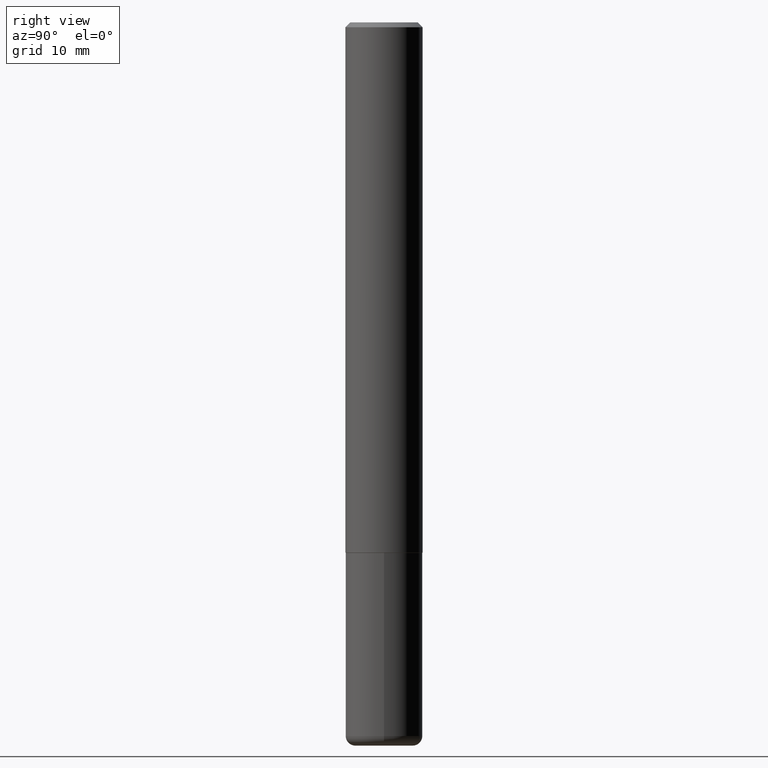
[diagram: clean part render]
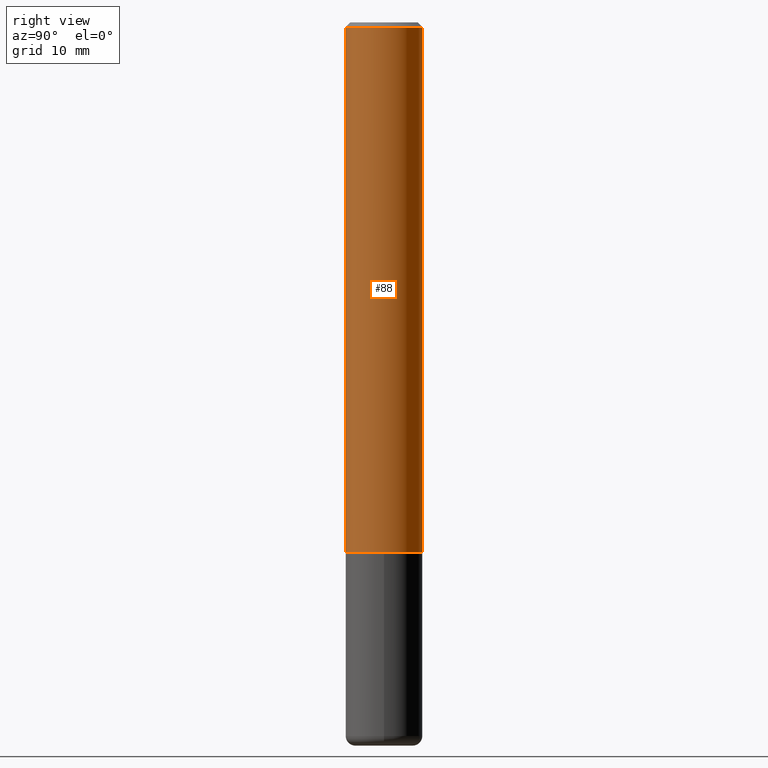
[diagram: same view with one face highlighted and labeled with its STEP entity id]
A machine part, right view. The second image highlights one B-rep face of the part: STEP entity #88.
In plain terms, the highlighted cylindrical surface (partial cylindrical patch) has radius 4.0005 mm, axis along (-0, 0, 1).
Its self-contained STEP definition (entity closure, byte-faithful):
#10 = VECTOR ( 'NONE', #78, 39.37007874015748143 ) ;
#16 = CARTESIAN_POINT ( 'NONE',  ( -1.099816621735587875E-15, -0.1575000000000001676, 5.500302794398574170E-16 ) ) ;
#17 = CARTESIAN_POINT ( 'NONE',  ( 1.099816621735587480E-15, 0.1574999999999999456, -0.02000000000000058328 ) ) ;
#21 = DIRECTION ( 'NONE',  ( -2.444928043019069804E-29, 3.492255742475281487E-15, 1.000000000000000000 ) ) ;
#38 = DIRECTION ( 'NONE',  ( -2.444928043019069804E-29, 3.492255742475281487E-15, 1.000000000000000000 ) ) ;
#41 = FACE_OUTER_BOUND ( 'NONE', #326, .T. ) ;
#55 = VERTEX_POINT ( 'NONE', #17 ) ;
#63 = ORIENTED_EDGE ( 'NONE', *, *, #163, .T. ) ;
#69 = LINE ( 'NONE', #235, #375 ) ;
#78 = DIRECTION ( 'NONE',  ( -2.444928043019069524E-29, 3.492255742475281487E-15, 1.000000000000000000 ) ) ;
#88 = ADVANCED_FACE ( 'NONE', ( #41 ), #276, .T. ) ;
#95 = CIRCLE ( 'NONE', #129, 0.1575000000000003064 ) ;
#102 = EDGE_CURVE ( 'NONE', #266, #55, #69, .T. ) ;
#104 = CARTESIAN_POINT ( 'NONE',  ( 4.889856086038147210E-31, -6.984511484950574659E-17, -0.02000000000000003511 ) ) ;
#112 = LINE ( 'NONE', #16, #10 ) ;
#127 = ORIENTED_EDGE ( 'NONE', *, *, #102, .T. ) ;
#129 = AXIS2_PLACEMENT_3D ( 'NONE', #203, #21, #148 ) ;
#132 = VERTEX_POINT ( 'NONE', #243 ) ;
#137 = EDGE_CURVE ( 'NONE', #132, #380, #112, .T. ) ;
#148 = DIRECTION ( 'NONE',  ( -6.982962677686265133E-15, -1.000000000000000000, 3.469013325287946588E-15 ) ) ;
#157 = DIRECTION ( 'NONE',  ( -6.982962677686264344E-15, -1.000000000000000000, 3.496114991891764787E-15 ) ) ;
#163 = EDGE_CURVE ( 'NONE', #132, #266, #95, .T. ) ;
#171 = CARTESIAN_POINT ( 'NONE',  ( 1.119104808822185805E-15, 0.1574999999999927569, -2.164400000000000102 ) ) ;
#203 = CARTESIAN_POINT ( 'NONE',  ( 5.291802256310474180E-29, -7.558638329013498276E-15, -2.164399999999999658 ) ) ;
#226 = DIRECTION ( 'NONE',  ( -2.444928043019069804E-29, 3.492255742475281487E-15, 1.000000000000000000 ) ) ;
#235 = CARTESIAN_POINT ( 'NONE',  ( 1.119104808822158787E-15, 0.1575000000000001676, -5.500302794398574170E-16 ) ) ;
#242 = CARTESIAN_POINT ( 'NONE',  ( 0.000000000000000000, 0.000000000000000000, 0.000000000000000000 ) ) ;
#243 = CARTESIAN_POINT ( 'NONE',  ( -1.099816621735536007E-15, -0.1575000000000078559, -2.164399999999999213 ) ) ;
#266 = VERTEX_POINT ( 'NONE', #171 ) ;
#272 = CARTESIAN_POINT ( 'NONE',  ( -1.080528434649015779E-15, -0.1575000000000000844, -0.01999999999999948347 ) ) ;
#276 = CYLINDRICAL_SURFACE ( 'NONE', #368, 0.1575000000000001676 ) ;
#314 = ORIENTED_EDGE ( 'NONE', *, *, #137, .F. ) ;
#326 = EDGE_LOOP ( 'NONE', ( #63, #127, #414, #314 ) ) ;
#338 = CIRCLE ( 'NONE', #376, 0.1575000000000000289 ) ;
#364 = DIRECTION ( 'NONE',  ( -2.444928043019069524E-29, 3.492255742475281487E-15, 1.000000000000000000 ) ) ;
#368 = AXIS2_PLACEMENT_3D ( 'NONE', #242, #38, #371 ) ;
#371 = DIRECTION ( 'NONE',  ( -6.982962677686265133E-15, -1.000000000000000000, 3.492255742475281487E-15 ) ) ;
#375 = VECTOR ( 'NONE', #364, 39.37007874015748143 ) ;
#376 = AXIS2_PLACEMENT_3D ( 'NONE', #104, #226, #157 ) ;
#380 = VERTEX_POINT ( 'NONE', #272 ) ;
#396 = EDGE_CURVE ( 'NONE', #380, #55, #338, .T. ) ;
#414 = ORIENTED_EDGE ( 'NONE', *, *, #396, .F. ) ;